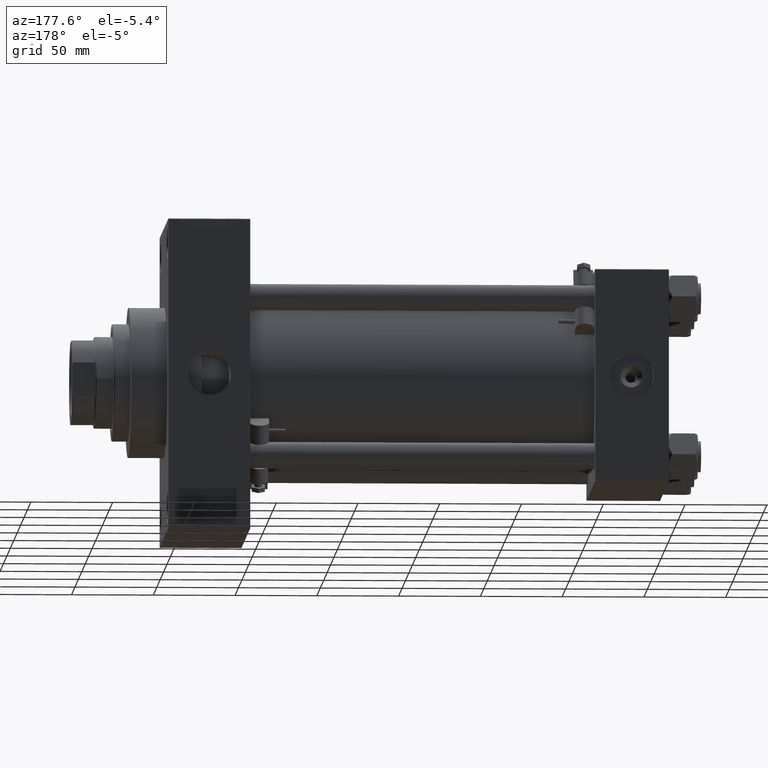
[diagram: clean part render]
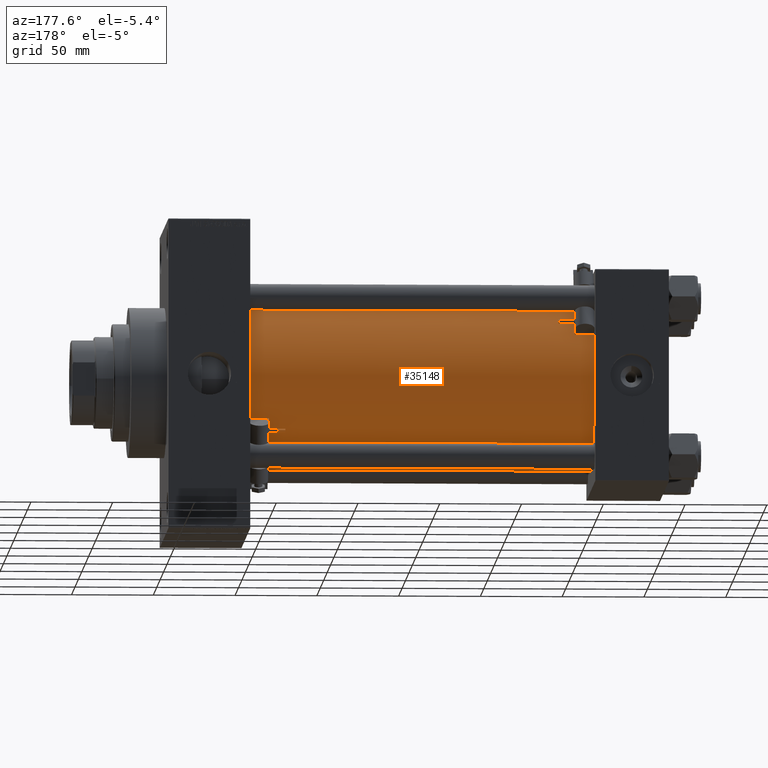
[diagram: same view with one face highlighted and labeled with its STEP entity id]
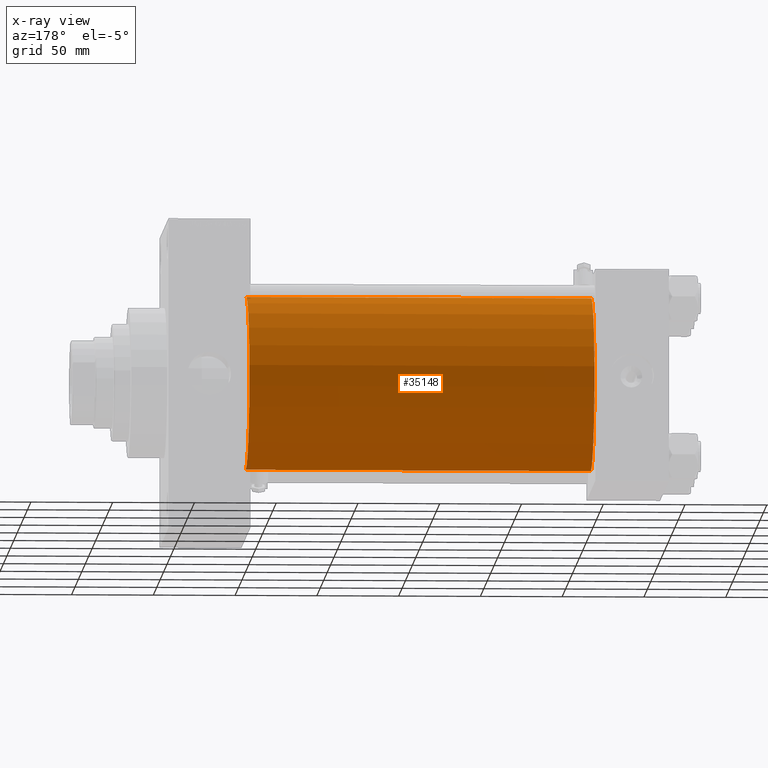
[diagram: x-ray of the same camera — body ghosted, the highlighted face saturated]
A machine part, auxiliary view. The second image highlights one B-rep face of the part: STEP entity #35148.
The next image is the same camera in x-ray: the body ghosted, the highlighted face saturated — about 0% of this face is hidden behind the body in this view.
In plain terms, the highlighted cylindrical surface (partial cylindrical patch) has radius 53 mm, axis along (-1, -0, -0).
Its self-contained STEP definition (entity closure, byte-faithful):
#140 = DIRECTION ( 'NONE',  ( -1.000000000000000000, -0.000000000000000000, -0.000000000000000000 ) ) ;
#1412 = VERTEX_POINT ( 'NONE', #3207 ) ;
#2212 = VECTOR ( 'NONE', #140, 1000.000000000000000 ) ;
#2333 = DIRECTION ( 'NONE',  ( 1.000000000000000000, 0.000000000000000000, 0.000000000000000000 ) ) ;
#2537 = CIRCLE ( 'NONE', #6491, 53.00000000000000711 ) ;
#3207 = CARTESIAN_POINT ( 'NONE',  ( 44.99999999999998579, -2.602085213965210642E-15, 53.00000000000000711 ) ) ;
#5588 = EDGE_CURVE ( 'NONE', #37029, #21539, #14532, .T. ) ;
#6045 = CARTESIAN_POINT ( 'NONE',  ( 256.0000000000000000, -2.602085213965210642E-15, 0.000000000000000000 ) ) ;
#6097 = EDGE_CURVE ( 'NONE', #10782, #1412, #26088, .T. ) ;
#6491 = AXIS2_PLACEMENT_3D ( 'NONE', #23851, #24100, #27557 ) ;
#6854 = DIRECTION ( 'NONE',  ( 0.000000000000000000, 0.000000000000000000, 1.000000000000000000 ) ) ;
#6888 = DIRECTION ( 'NONE',  ( -1.000000000000000000, -0.000000000000000000, -0.000000000000000000 ) ) ;
#7260 = EDGE_CURVE ( 'NONE', #37029, #10782, #32218, .T. ) ;
#10550 = CYLINDRICAL_SURFACE ( 'NONE', #21234, 53.00000000000000711 ) ;
#10782 = VERTEX_POINT ( 'NONE', #35916 ) ;
#14254 = FACE_OUTER_BOUND ( 'NONE', #45896, .T. ) ;
#14532 = LINE ( 'NONE', #17269, #40074 ) ;
#15355 = CARTESIAN_POINT ( 'NONE',  ( 256.0000000000000000, 3.888542821515762466E-15, -53.00000000000000711 ) ) ;
#17269 = CARTESIAN_POINT ( 'NONE',  ( 256.0000000000000000, 3.888542821515762466E-15, -53.00000000000000711 ) ) ;
#19576 = AXIS2_PLACEMENT_3D ( 'NONE', #6045, #2333, #40608 ) ;
#21234 = AXIS2_PLACEMENT_3D ( 'NONE', #25639, #40682, #6854 ) ;
#21539 = VERTEX_POINT ( 'NONE', #35958 ) ;
#22774 = ORIENTED_EDGE ( 'NONE', *, *, #7260, .F. ) ;
#23851 = CARTESIAN_POINT ( 'NONE',  ( 44.99999999999998579, -2.602085213965210642E-15, 0.000000000000000000 ) ) ;
#24100 = DIRECTION ( 'NONE',  ( 1.000000000000000000, -0.000000000000000000, 0.000000000000000000 ) ) ;
#25639 = CARTESIAN_POINT ( 'NONE',  ( 256.0000000000000000, -2.602085213965210642E-15, 0.000000000000000000 ) ) ;
#26088 = LINE ( 'NONE', #41384, #2212 ) ;
#27557 = DIRECTION ( 'NONE',  ( 0.000000000000000000, 0.000000000000000000, 1.000000000000000000 ) ) ;
#29566 = ORIENTED_EDGE ( 'NONE', *, *, #6097, .F. ) ;
#32218 = CIRCLE ( 'NONE', #19576, 53.00000000000000711 ) ;
#33346 = ORIENTED_EDGE ( 'NONE', *, *, #5588, .T. ) ;
#35148 = ADVANCED_FACE ( 'NONE', ( #14254 ), #10550, .T. ) ;
#35916 = CARTESIAN_POINT ( 'NONE',  ( 256.0000000000000000, -2.602085213965210642E-15, 53.00000000000000711 ) ) ;
#35958 = CARTESIAN_POINT ( 'NONE',  ( 44.99999999999998579, 3.888542821515762466E-15, -53.00000000000000711 ) ) ;
#37029 = VERTEX_POINT ( 'NONE', #15355 ) ;
#40074 = VECTOR ( 'NONE', #6888, 1000.000000000000000 ) ;
#40608 = DIRECTION ( 'NONE',  ( 0.000000000000000000, 0.000000000000000000, -1.000000000000000000 ) ) ;
#40682 = DIRECTION ( 'NONE',  ( -1.000000000000000000, -0.000000000000000000, -0.000000000000000000 ) ) ;
#41384 = CARTESIAN_POINT ( 'NONE',  ( 256.0000000000000000, -2.602085213965210642E-15, 53.00000000000000711 ) ) ;
#45105 = EDGE_CURVE ( 'NONE', #21539, #1412, #2537, .T. ) ;
#45896 = EDGE_LOOP ( 'NONE', ( #22774, #33346, #47574, #29566 ) ) ;
#47574 = ORIENTED_EDGE ( 'NONE', *, *, #45105, .T. ) ;